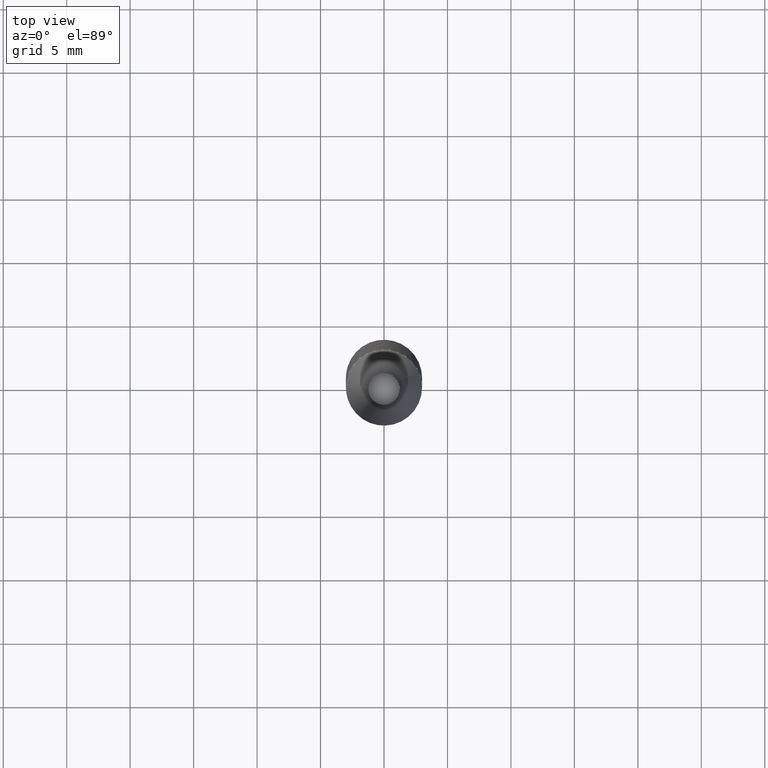
[diagram: clean part render]
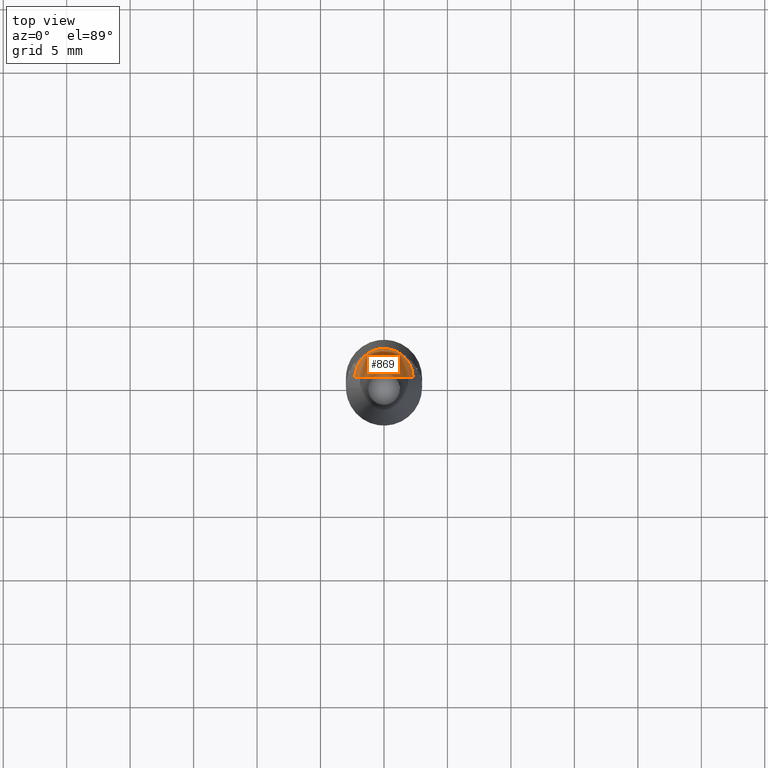
[diagram: same view with one face highlighted and labeled with its STEP entity id]
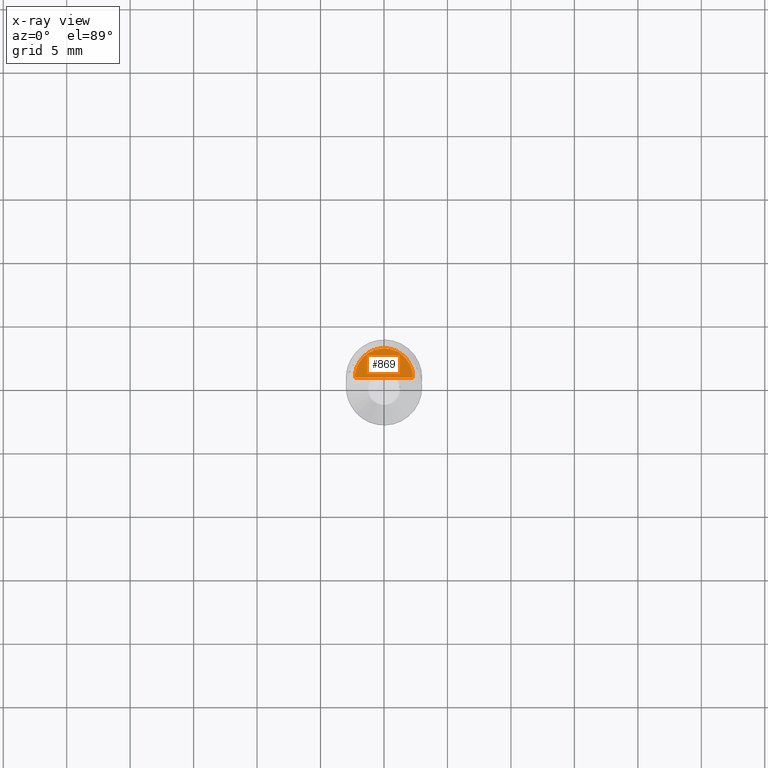
[diagram: x-ray of the same camera — body ghosted, the highlighted face saturated]
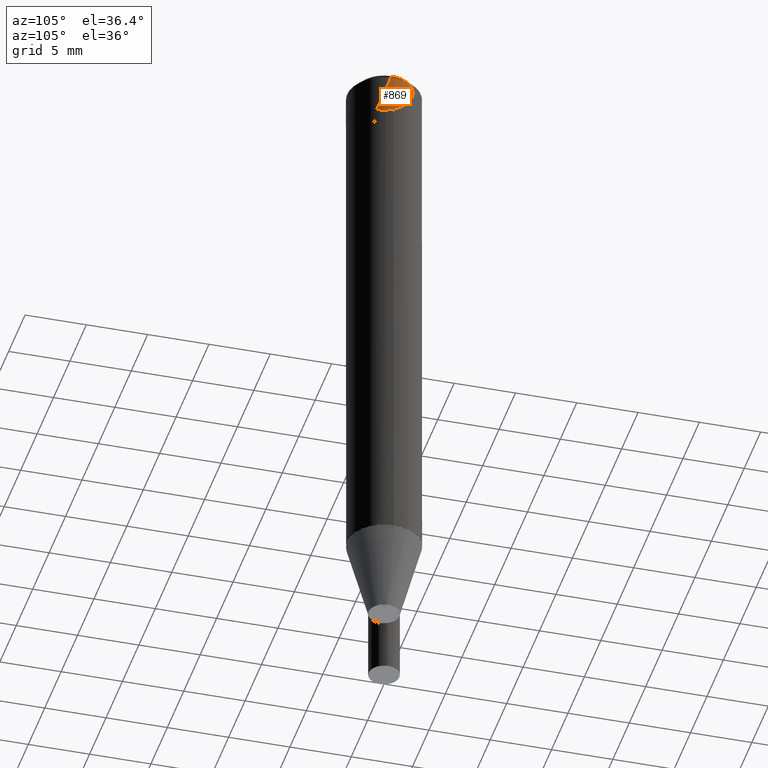
[diagram: same view with one face highlighted and labeled with its STEP entity id]
A machine part, top view. The second image highlights one B-rep face of the part: STEP entity #869.
The next image is the same camera in x-ray: the body ghosted, the highlighted face saturated — about 0% of this face is hidden behind the body in this view.
A second angle (auxiliary view) of the same face is appended — the face is thin or edge-on in the first view.
In plain terms, the highlighted face is a freeform B-spline surface patch.
Its self-contained STEP definition (entity closure, byte-faithful):
#608=CARTESIAN_POINT('',(2.3,0.0,44.468930771));
#609=CARTESIAN_POINT('',(2.3,2.3,44.468930771));
#610=CARTESIAN_POINT('',(0.0,2.3,44.468930771));
#611=CARTESIAN_POINT('',(-2.3,2.3,44.468930771));
#612=CARTESIAN_POINT('',(-2.3,0.0,44.468930771));
#613=CARTESIAN_POINT('',(0.0,0.0,44.468930771));
#854=(
BOUNDED_SURFACE()
B_SPLINE_SURFACE(1,2,(
(#608,#609,#610,#611,#612),
(#613,#613,#613,#613,#613)
), .UNSPECIFIED.,.F.,.F.,.F.)
B_SPLINE_SURFACE_WITH_KNOTS((2,2),(3,2,3),(
0.0,1.0),(
0.0,0.5,1.0), .UNSPECIFIED.)
GEOMETRIC_REPRESENTATION_ITEM()
RATIONAL_B_SPLINE_SURFACE(((1.0,0.707106781187,1.0,0.707106781187,1.0),
(1.0,0.707106781187,1.0,0.707106781187,1.0)
))
REPRESENTATION_ITEM('')
SURFACE()
);
#855=(
BOUNDED_CURVE()
B_SPLINE_CURVE(1,(#613,#608),.UNSPECIFIED.,.F.,.F.)
B_SPLINE_CURVE_WITH_KNOTS((2,2),
(0.0,1.0),.UNSPECIFIED.)
CURVE()
GEOMETRIC_REPRESENTATION_ITEM()
RATIONAL_B_SPLINE_CURVE((1.0,1.0))
REPRESENTATION_ITEM('')
);
#856=(
BOUNDED_CURVE()
B_SPLINE_CURVE(2,(#608,#609,#610,#611,#612),.UNSPECIFIED.,.F.,.F.)
B_SPLINE_CURVE_WITH_KNOTS((3,2,3),
(0.0,0.5,1.0),.UNSPECIFIED.)
CURVE()
GEOMETRIC_REPRESENTATION_ITEM()
RATIONAL_B_SPLINE_CURVE((1.0,0.707106781187,1.0,0.707106781187,1.0))
REPRESENTATION_ITEM('')
);
#857=(
BOUNDED_CURVE()
B_SPLINE_CURVE(1,(#612,#613),.UNSPECIFIED.,.F.,.F.)
B_SPLINE_CURVE_WITH_KNOTS((2,2),
(0.0,1.0),.UNSPECIFIED.)
CURVE()
GEOMETRIC_REPRESENTATION_ITEM()
RATIONAL_B_SPLINE_CURVE((1.0,1.0))
REPRESENTATION_ITEM('')
);
#858=VERTEX_POINT('',#608);
#859=VERTEX_POINT('',#612);
#860=VERTEX_POINT('',#613);
#861=EDGE_CURVE('',#860,#858,#855,.T.);
#862=EDGE_CURVE('',#858,#859,#856,.T.);
#863=EDGE_CURVE('',#859,#860,#857,.T.);
#864=ORIENTED_EDGE('',*,*,#861,.T.);
#865=ORIENTED_EDGE('',*,*,#862,.T.);
#866=ORIENTED_EDGE('',*,*,#863,.T.);
#867=EDGE_LOOP('',(#864,#865,#866));
#868=FACE_OUTER_BOUND('',#867,.T.);
#869=ADVANCED_FACE('',(#868),#854,.T.);